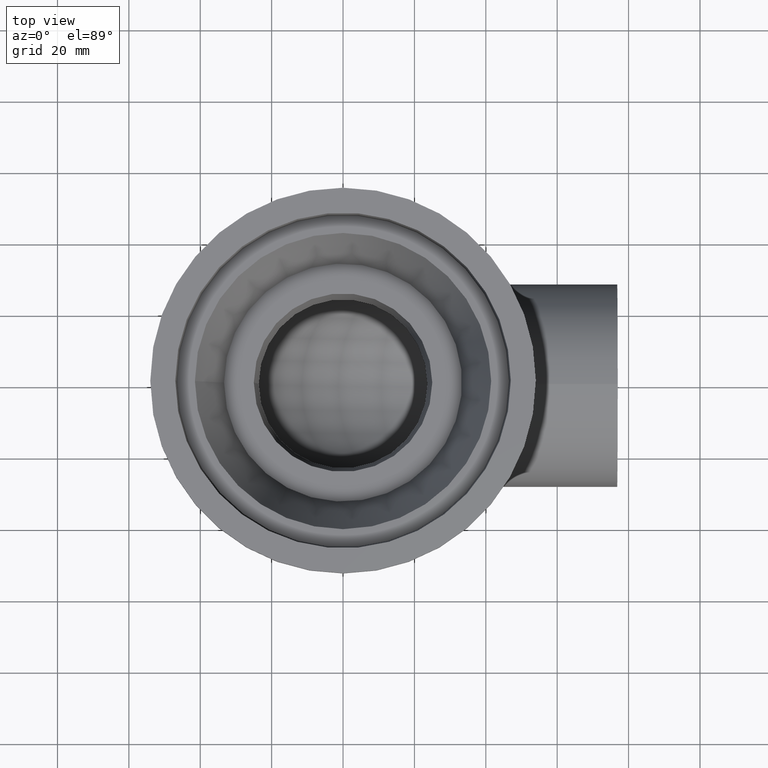
[diagram: clean part render]
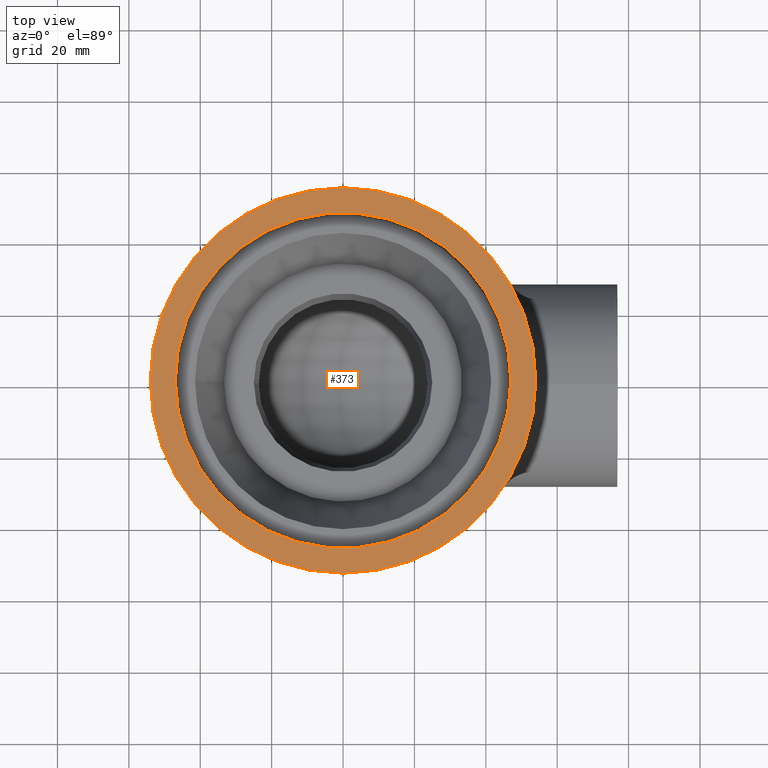
[diagram: same view with one face highlighted and labeled with its STEP entity id]
A machine part, top view. The second image highlights one B-rep face of the part: STEP entity #373.
In plain terms, the highlighted planar face has unit normal (0, 0, 1).
Its self-contained STEP definition (entity closure, byte-faithful):
#48=ORIENTED_EDGE('',*,*,#117,.T.);
#49=ORIENTED_EDGE('',*,*,#116,.F.);
#116=EDGE_CURVE('',#151,#151,#186,.T.);
#117=EDGE_CURVE('',#152,#152,#187,.T.);
#151=VERTEX_POINT('',#643);
#152=VERTEX_POINT('',#646);
#186=CIRCLE('',#425,54.);
#187=CIRCLE('',#427,47.);
#223=EDGE_LOOP('',(#48));
#224=EDGE_LOOP('',(#49));
#293=FACE_BOUND('',#223,.T.);
#294=FACE_BOUND('',#224,.T.);
#359=PLANE('',#426);
#373=ADVANCED_FACE('',(#293,#294),#359,.T.);
#425=AXIS2_PLACEMENT_3D('',#642,#504,#505);
#426=AXIS2_PLACEMENT_3D('',#644,#506,#507);
#427=AXIS2_PLACEMENT_3D('',#645,#508,#509);
#504=DIRECTION('',(0.,0.,-1.));
#505=DIRECTION('',(-1.,0.,0.));
#506=DIRECTION('',(0.,0.,1.));
#507=DIRECTION('',(1.,0.,0.));
#508=DIRECTION('',(0.,0.,-1.));
#509=DIRECTION('',(-1.,0.,0.));
#642=CARTESIAN_POINT('',(0.,0.,-6.93889390390723E-15));
#643=CARTESIAN_POINT('',(-54.,0.,-6.93889390390723E-15));
#644=CARTESIAN_POINT('',(-54.,0.,-7.02216063075412E-15));
#645=CARTESIAN_POINT('',(0.,0.,-6.93889390390723E-15));
#646=CARTESIAN_POINT('',(-47.,0.,-6.93889390390723E-15));